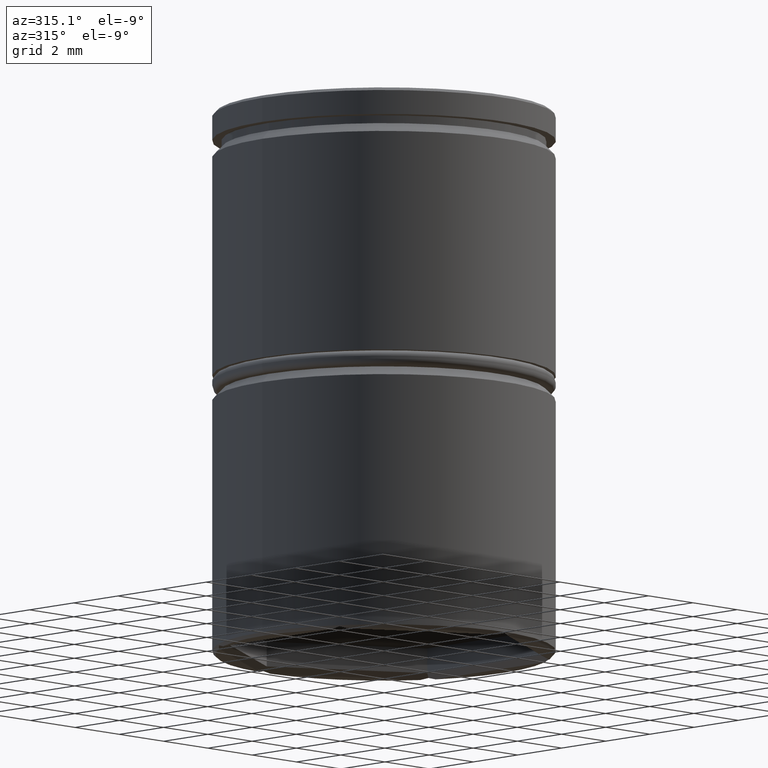
[diagram: clean part render]
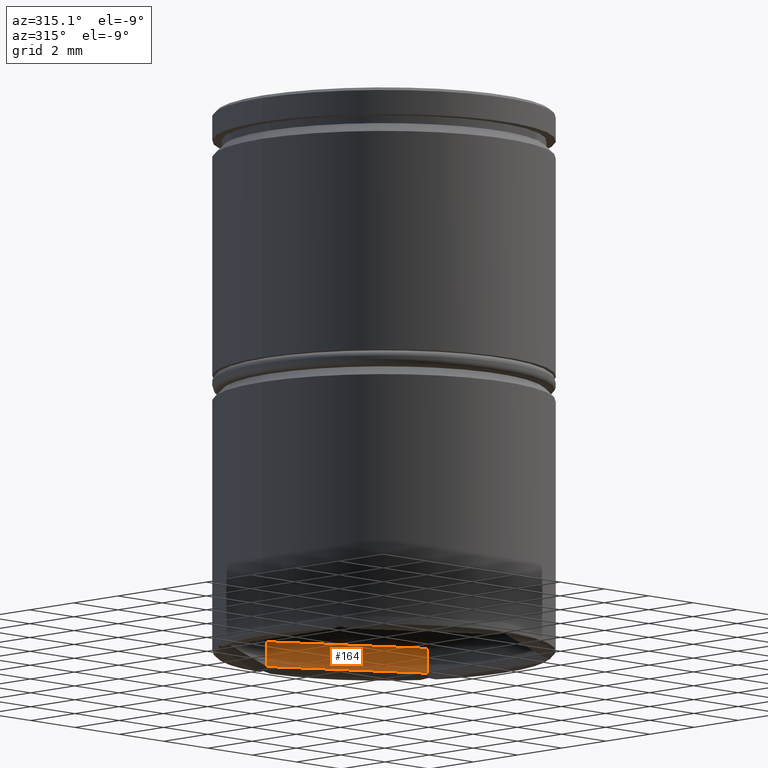
[diagram: same view with one face highlighted and labeled with its STEP entity id]
A machine part, auxiliary view. The second image highlights one B-rep face of the part: STEP entity #164.
In plain terms, the highlighted planar face has unit normal (0.5, 0.866, -0).
Its self-contained STEP definition (entity closure, byte-faithful):
#8 = CARTESIAN_POINT ( 'NONE',  ( 0.000000000000000000, 5.311622476544559213, -16.50000000000000000 ) ) ;
#92 = VECTOR ( 'NONE', #1373, 1000.000000000000114 ) ;
#102 = FACE_OUTER_BOUND ( 'NONE', #135, .T. ) ;
#134 = CARTESIAN_POINT ( 'NONE',  ( 0.000000000000000000, 5.311622476544559213, -16.50000000000000000 ) ) ;
#135 = EDGE_LOOP ( 'NONE', ( #678, #999, #740, #1365 ) ) ;
#148 = EDGE_CURVE ( 'NONE', #748, #1336, #376, .T. ) ;
#164 = ADVANCED_FACE ( 'NONE', ( #102 ), #212, .F. ) ;
#212 = PLANE ( 'NONE',  #1364 ) ;
#217 = CARTESIAN_POINT ( 'NONE',  ( 0.000000000000000000, 5.311622476544559213, -16.50000000000000000 ) ) ;
#231 = CARTESIAN_POINT ( 'NONE',  ( 4.600000000000003197, 2.655811238272278718, -17.30000000000000426 ) ) ;
#271 = EDGE_CURVE ( 'NONE', #1336, #329, #1062, .T. ) ;
#329 = VERTEX_POINT ( 'NONE', #231 ) ;
#376 = LINE ( 'NONE', #802, #669 ) ;
#483 = EDGE_CURVE ( 'NONE', #649, #329, #523, .T. ) ;
#487 = CARTESIAN_POINT ( 'NONE',  ( 4.600000000000003197, 2.655811238272278718, -16.50000000000000000 ) ) ;
#523 = LINE ( 'NONE', #1049, #743 ) ;
#631 = CARTESIAN_POINT ( 'NONE',  ( 0.000000000000000000, 5.311622476544559213, -17.30000000000000426 ) ) ;
#649 = VERTEX_POINT ( 'NONE', #487 ) ;
#669 = VECTOR ( 'NONE', #1232, 1000.000000000000000 ) ;
#678 = ORIENTED_EDGE ( 'NONE', *, *, #148, .T. ) ;
#730 = DIRECTION ( 'NONE',  ( -0.000000000000000000, -0.000000000000000000, -1.000000000000000000 ) ) ;
#740 = ORIENTED_EDGE ( 'NONE', *, *, #483, .F. ) ;
#743 = VECTOR ( 'NONE', #730, 1000.000000000000000 ) ;
#748 = VERTEX_POINT ( 'NONE', #8 ) ;
#798 = EDGE_CURVE ( 'NONE', #748, #649, #1191, .T. ) ;
#802 = CARTESIAN_POINT ( 'NONE',  ( 0.000000000000000000, 5.311622476544559213, -16.50000000000000000 ) ) ;
#863 = DIRECTION ( 'NONE',  ( 0.5000000000000000000, 0.8660254037844387076, -0.000000000000000000 ) ) ;
#937 = VECTOR ( 'NONE', #1063, 1000.000000000000114 ) ;
#945 = CARTESIAN_POINT ( 'NONE',  ( 4.600000000000003197, 2.655811238272278718, -17.30000000000000426 ) ) ;
#999 = ORIENTED_EDGE ( 'NONE', *, *, #271, .T. ) ;
#1049 = CARTESIAN_POINT ( 'NONE',  ( 4.600000000000003197, 2.655811238272278718, -16.50000000000000000 ) ) ;
#1062 = LINE ( 'NONE', #945, #92 ) ;
#1063 = DIRECTION ( 'NONE',  ( 0.8660254037844385966, -0.4999999999999999445, 0.000000000000000000 ) ) ;
#1191 = LINE ( 'NONE', #134, #937 ) ;
#1232 = DIRECTION ( 'NONE',  ( -0.000000000000000000, -0.000000000000000000, -1.000000000000000000 ) ) ;
#1285 = DIRECTION ( 'NONE',  ( -0.8660254037844385966, 0.4999999999999999445, 0.000000000000000000 ) ) ;
#1336 = VERTEX_POINT ( 'NONE', #631 ) ;
#1364 = AXIS2_PLACEMENT_3D ( 'NONE', #217, #863, #1285 ) ;
#1365 = ORIENTED_EDGE ( 'NONE', *, *, #798, .F. ) ;
#1373 = DIRECTION ( 'NONE',  ( 0.8660254037844385966, -0.4999999999999999445, 0.000000000000000000 ) ) ;